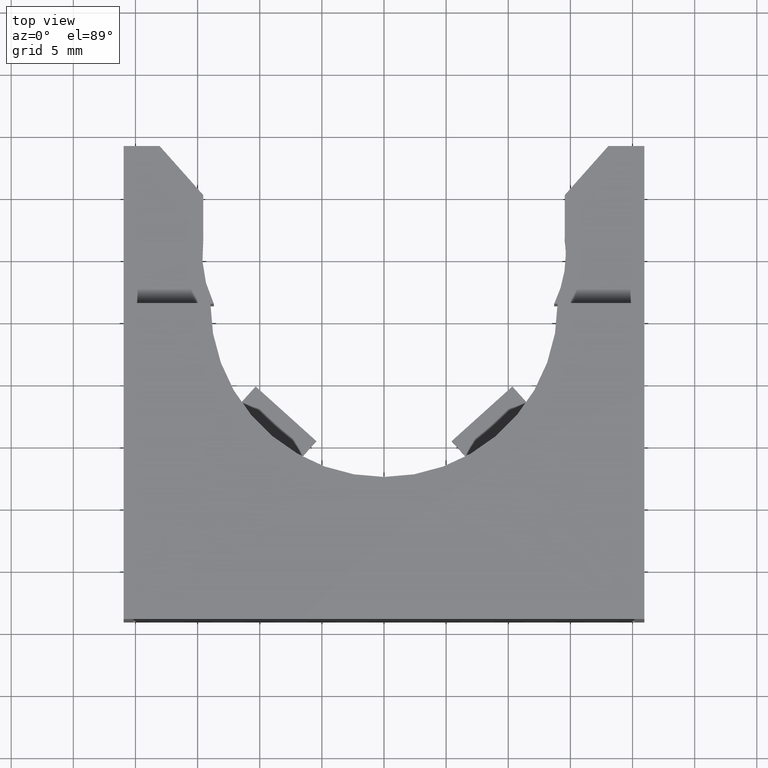
[diagram: clean part render]
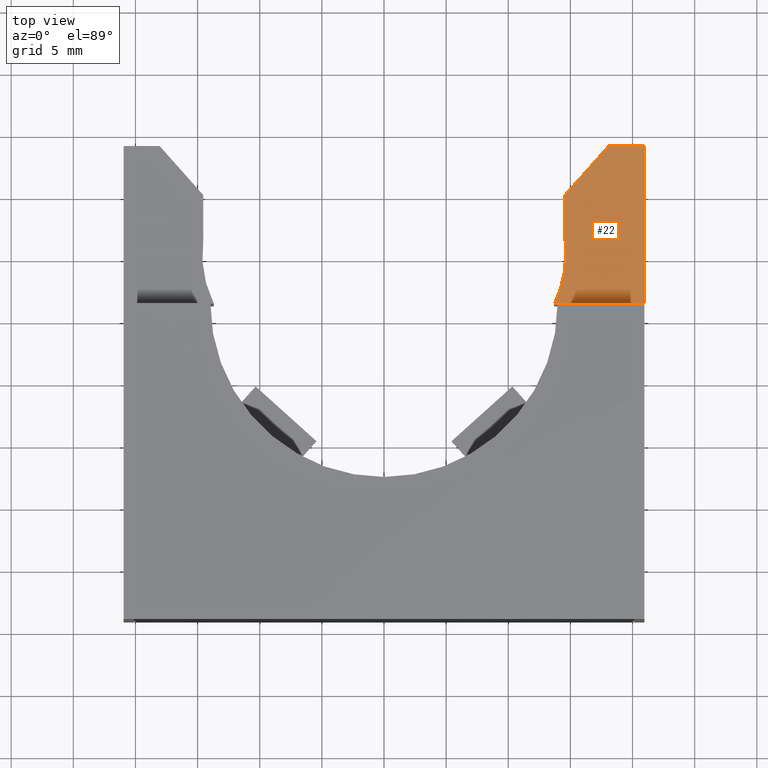
[diagram: same view with one face highlighted and labeled with its STEP entity id]
A machine part, top view. The second image highlights one B-rep face of the part: STEP entity #22.
In plain terms, the highlighted planar face has unit normal (-0, 0, -1).
Its self-contained STEP definition (entity closure, byte-faithful):
#2 = EDGE_CURVE ( 'NONE', #40, #529, #501, .T. ) ;
#21 = EDGE_CURVE ( 'NONE', #464, #34, #740, .T. ) ;
#22 = ADVANCED_FACE ( 'NONE', ( #776 ), #795, .F. ) ;
#23 = EDGE_LOOP ( 'NONE', ( #24, #70, #69, #145, #48, #163, #63, #64 ) ) ;
#24 = ORIENTED_EDGE ( 'NONE', *, *, #45, .F. ) ;
#34 = VERTEX_POINT ( 'NONE', #718 ) ;
#36 = EDGE_CURVE ( 'NONE', #34, #445, #763, .T. ) ;
#40 = VERTEX_POINT ( 'NONE', #785 ) ;
#45 = EDGE_CURVE ( 'NONE', #475, #40, #784, .T. ) ;
#48 = ORIENTED_EDGE ( 'NONE', *, *, #65, .T. ) ;
#63 = ORIENTED_EDGE ( 'NONE', *, *, #531, .F. ) ;
#64 = ORIENTED_EDGE ( 'NONE', *, *, #2, .F. ) ;
#65 = EDGE_CURVE ( 'NONE', #464, #633, #806, .T. ) ;
#69 = ORIENTED_EDGE ( 'NONE', *, *, #36, .F. ) ;
#70 = ORIENTED_EDGE ( 'NONE', *, *, #474, .F. ) ;
#145 = ORIENTED_EDGE ( 'NONE', *, *, #21, .F. ) ;
#163 = ORIENTED_EDGE ( 'NONE', *, *, #632, .T. ) ;
#445 = VERTEX_POINT ( 'NONE', #1338 ) ;
#464 = VERTEX_POINT ( 'NONE', #1221 ) ;
#474 = EDGE_CURVE ( 'NONE', #445, #475, #1171, .T. ) ;
#475 = VERTEX_POINT ( 'NONE', #1167 ) ;
#498 = DIRECTION ( 'NONE',  ( 0.6644573533129691800, 0.7473261842250169500, 0.0000000000000000000 ) ) ;
#499 = VECTOR ( 'NONE', #498, 39.37007874015748100 ) ;
#500 = CARTESIAN_POINT ( 'NONE',  ( 0.5728124999999998400, 0.5950000000000000800, 0.5404500000000002100 ) ) ;
#501 = LINE ( 'NONE', #500, #499 ) ;
#529 = VERTEX_POINT ( 'NONE', #1501 ) ;
#531 = EDGE_CURVE ( 'NONE', #529, #550, #1498, .T. ) ;
#550 = VERTEX_POINT ( 'NONE', #1454 ) ;
#632 = EDGE_CURVE ( 'NONE', #633, #550, #1691, .T. ) ;
#633 = VERTEX_POINT ( 'NONE', #1685 ) ;
#714 = DIRECTION ( 'NONE',  ( -1.000000000000000000, 3.607653301798158300E-015, 0.0000000000000000000 ) ) ;
#715 = DIRECTION ( 'NONE',  ( 0.0000000000000000000, 0.0000000000000000000, 1.000000000000000000 ) ) ;
#716 = CARTESIAN_POINT ( 'NONE',  ( 0.2163666832557222800, 0.4090057878909964000, 0.5404500000000002100 ) ) ;
#718 = CARTESIAN_POINT ( 'NONE',  ( 0.5390000000000000300, 0.2500000000000001700, 0.5404500000000002100 ) ) ;
#740 = LINE ( 'NONE', #790, #777 ) ;
#741 = DIRECTION ( 'NONE',  ( -1.000000000000000000, 0.0000000000000000000, 0.0000000000000000000 ) ) ;
#742 = DIRECTION ( 'NONE',  ( -0.0000000000000000000, 0.0000000000000000000, -1.000000000000000000 ) ) ;
#743 = AXIS2_PLACEMENT_3D ( 'NONE', #791, #742, #741 ) ;
#762 = AXIS2_PLACEMENT_3D ( 'NONE', #716, #715, #714 ) ;
#763 = CIRCLE ( 'NONE', #762, 0.3596874999999999400 ) ;
#776 = FACE_OUTER_BOUND ( 'NONE', #23, .T. ) ;
#777 = VECTOR ( 'NONE', #789, 39.37007874015748100 ) ;
#781 = DIRECTION ( 'NONE',  ( 0.0000000000000000000, 1.000000000000000000, 0.0000000000000000000 ) ) ;
#782 = VECTOR ( 'NONE', #781, 39.37007874015748100 ) ;
#783 = CARTESIAN_POINT ( 'NONE',  ( 0.5728124999999998400, 0.4571875000000000800, 0.5404500000000002100 ) ) ;
#784 = LINE ( 'NONE', #783, #782 ) ;
#785 = CARTESIAN_POINT ( 'NONE',  ( 0.5728124999999998400, 0.5950000000000000800, 0.5404500000000002100 ) ) ;
#789 = DIRECTION ( 'NONE',  ( -1.000000000000000000, 0.0000000000000000000, 0.0000000000000000000 ) ) ;
#790 = CARTESIAN_POINT ( 'NONE',  ( 0.5390000000000000300, 0.2500000000000000600, 0.5404500000000002100 ) ) ;
#791 = CARTESIAN_POINT ( 'NONE',  ( -0.8250000000000004000, 0.7499999999999998900, 0.5404500000000002100 ) ) ;
#795 = PLANE ( 'NONE',  #743 ) ;
#803 = DIRECTION ( 'NONE',  ( 1.000000000000000000, -0.0000000000000000000, -0.0000000000000000000 ) ) ;
#804 = VECTOR ( 'NONE', #803, 39.37007874015748100 ) ;
#805 = CARTESIAN_POINT ( 'NONE',  ( -0.8250000000000004000, 0.2500000000000000600, 0.5404500000000002100 ) ) ;
#806 = LINE ( 'NONE', #805, #804 ) ;
#1167 = CARTESIAN_POINT ( 'NONE',  ( 0.5728124999999998400, 0.4571875000000000800, 0.5404500000000002100 ) ) ;
#1168 = DIRECTION ( 'NONE',  ( -1.000000000000000000, 0.0000000000000000000, 0.0000000000000000000 ) ) ;
#1169 = DIRECTION ( 'NONE',  ( 0.0000000000000000000, 0.0000000000000000000, 1.000000000000000000 ) ) ;
#1170 = AXIS2_PLACEMENT_3D ( 'NONE', #1205, #1169, #1168 ) ;
#1171 = CIRCLE ( 'NONE', #1170, 0.3596874999999999400 ) ;
#1205 = CARTESIAN_POINT ( 'NONE',  ( 0.2163666832557222800, 0.4090057878909964000, 0.5404500000000002100 ) ) ;
#1221 = CARTESIAN_POINT ( 'NONE',  ( 0.5500000000000001600, 0.2500000000000000600, 0.5404500000000002100 ) ) ;
#1338 = CARTESIAN_POINT ( 'NONE',  ( 0.5760541832557222200, 0.4090057878909964000, 0.5404500000000002100 ) ) ;
#1454 = CARTESIAN_POINT ( 'NONE',  ( 0.8249999999999998400, 0.7499999999999998900, 0.5404500000000002100 ) ) ;
#1458 = DIRECTION ( 'NONE',  ( 1.000000000000000000, -0.0000000000000000000, -0.0000000000000000000 ) ) ;
#1459 = VECTOR ( 'NONE', #1458, 39.37007874015748100 ) ;
#1497 = CARTESIAN_POINT ( 'NONE',  ( -0.8250000000000004000, 0.7499999999999998900, 0.5404500000000002100 ) ) ;
#1498 = LINE ( 'NONE', #1497, #1459 ) ;
#1501 = CARTESIAN_POINT ( 'NONE',  ( 0.7106249999999997300, 0.7499999999999998900, 0.5404500000000002100 ) ) ;
#1685 = CARTESIAN_POINT ( 'NONE',  ( 0.8249999999999998400, 0.2500000000000000600, 0.5404500000000002100 ) ) ;
#1686 = DIRECTION ( 'NONE',  ( -0.0000000000000000000, 1.000000000000000000, -0.0000000000000000000 ) ) ;
#1689 = VECTOR ( 'NONE', #1686, 39.37007874015748100 ) ;
#1690 = CARTESIAN_POINT ( 'NONE',  ( 0.8249999999999998400, 0.7499999999999998900, 0.5404500000000002100 ) ) ;
#1691 = LINE ( 'NONE', #1690, #1689 ) ;